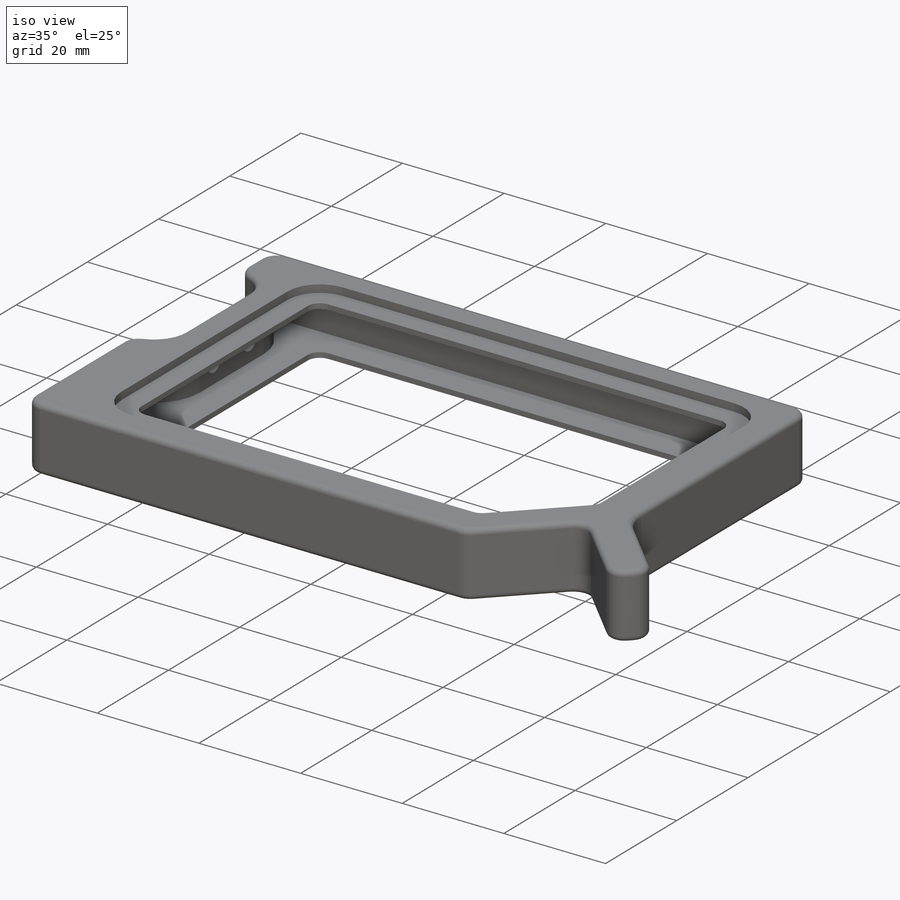
[diagram: iso view]
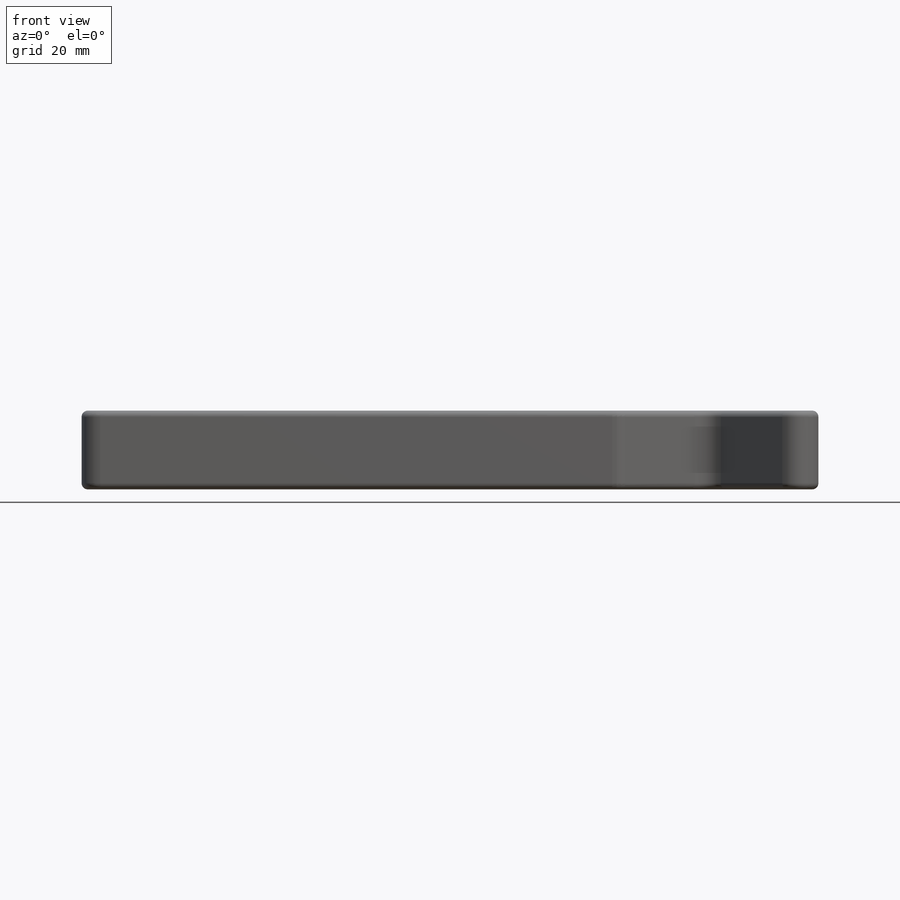
[diagram: front view]
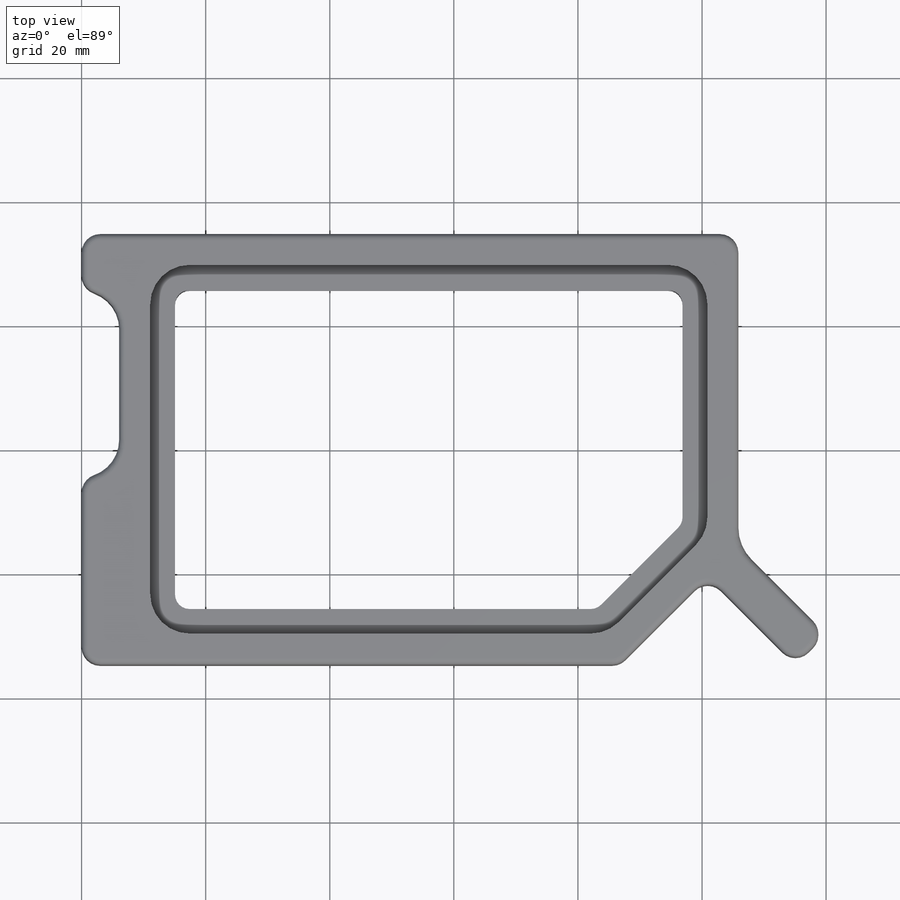
[diagram: top view]
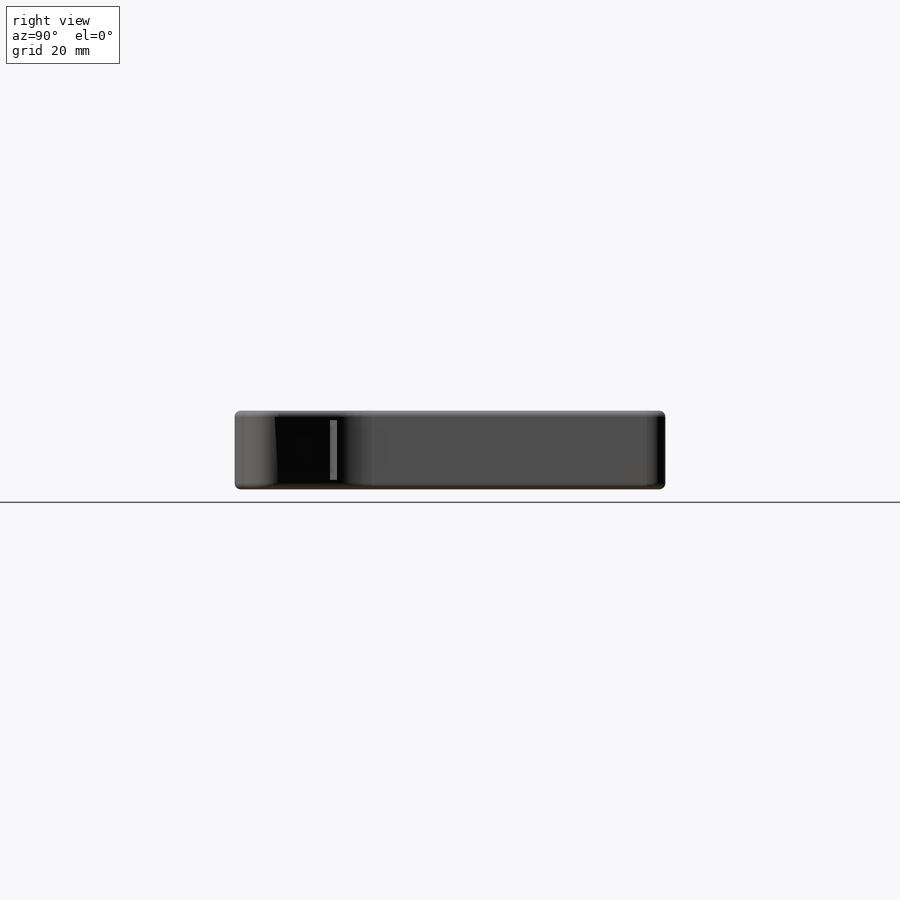
[diagram: right view]
SOLIDWORKS PART (.sldprt)
format: sldprt  version: not decoded by parser v0  size: 556,544 bytes
history: native  units: mm
features: sketch x9, cut_extrude x6, fillet x4, extrude x3, material x1, mirror x1, plane x1 (+11 scaffold rows collapsed)
feature tree (36):
  scaffold x11  (default folders/planes/origin — collapsed)
  material  "Material <not specified>"
  sketch  "Sketch1"  dims[D1=120.0mm]
  extrude  "Boss-Extrude1"  Depth=6.35mm
  sketch  "Sketch2"  dims[c1.D1=120.0mm c2.D1=45.0deg c2.D2=20.0mm c2.D3=7.0mm]
  cut_extrude  "Cut-Extrude1"  [1 undecoded]
  fillet  "Fillet1"  Radius=3mm
  sketch  "Sketch3"
  extrude  "Boss-Extrude2"  [1 undecoded]
  sketch  "Sketch4"  dims[D1=5.0mm D2=5.0mm D3=5.0mm]
  cut_extrude  "Cut-Extrude2"  Depth=1.5mm
  fillet  "Fillet2"  Radius=6.35mm
  sketch  "Sketch5"  dims[D1=4.0mm]
  cut_extrude  "Cut-Extrude3"  [1 undecoded]
  sketch  "Sketch6"  dims[D1=3.0mm]
  cut_extrude  "Cut-Extrude4"  Depth=1mm
  sketch  "Sketch7"
  extrude  "Boss-Extrude3"  [1 undecoded]
  fillet  "Fillet4"  Radius=1mm
  mirror  "Mirror1"
  sketch  "Sketch8"  dims[c1.D3=8.0mm c1.D1=~4.93948mm c2.D1=60.0deg c2.D2=~4.625796mm c3.D2=60.0deg c3.D4=10.7mm]
  cut_extrude  "Cut-Extrude5"  Depth=21mm
  fillet  "Fillet5"  Radius=1mm
  plane  "Plane1"
  sketch  "Sketch9"
  cut_extrude  "Cut-Extrude6"  Depth=1.6mm
decode coverage: 15 of 23 modeling features carry decoded parameters
note: ~ marks probable driven/reference dimensions
note: 4 parameter values undecoded
summary: no parameter record found for 4 features
note: suppression state not decoded; provenance and decode notes live in map.json
